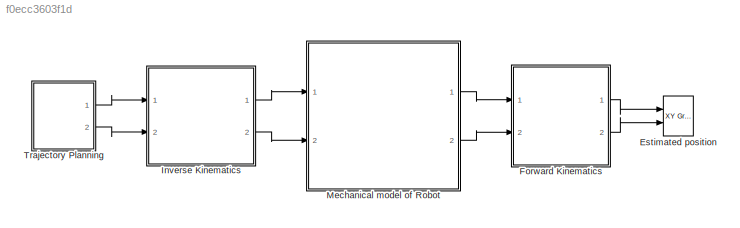
MODEL slx_f0ecc3603f1d
KIND model
CONFIG AbsTol = auto
CONFIG EnableMultiTasking = off
CONFIG FixedStep = auto
CONFIG MaxStep = auto
CONFIG MinStep = auto
CONFIG RelTol = 1e-3
CONFIG SampleTimeConstraint = Unconstrained
CONFIG Solver = VariableStepAuto
CONFIG SolverName = VariableStepAuto
CONFIG StartTime = 0.0
CONFIG StopTime = 5
BLOCK [Reference] Estimated position  REF=simulink/Sinks/XY Graph
  Ports = [2]
  SourceBlock = simulink/Sinks/XY Graph
  SourceProductBaseCode = SL
  SourceProductName = Simulink
  SourceType = XY scope.
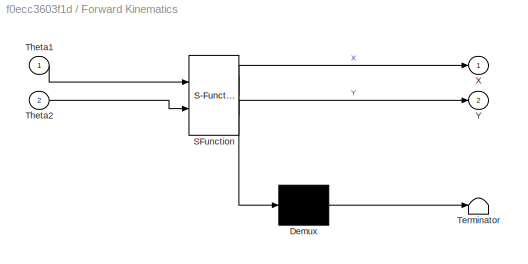
BLOCK [SubSystem] Forward Kinematics
  ErrorFcn = Stateflow.Translate.translate
  PermitHierarchicalResolution = ExplicitOnly
  Ports = [2, 2]
  RequestExecContextInheritance = off
  SFBlockType = MATLAB Function
  TreatAsAtomicUnit = on
BLOCK [Demux] Forward Kinematics/ Demux 
  Outputs = 1
  Ports = [1, 1]
BLOCK [S-Function] Forward Kinematics/ SFunction 
  EnableBusSupport = on
  FunctionName = sf_sfun
  PortCounts = [2 3]
  Ports = [2, 3]
  SFcnIsStateOwnerBlock = off
  SFunctionDeploymentMode = off
  Tag = Stateflow S-Function RR_Robot_kin 2
BLOCK [Terminator] Forward Kinematics/ Terminator 
BLOCK [Inport] Forward Kinematics/Theta1
  IconDisplay = Port number
BLOCK [Inport] Forward Kinematics/Theta2
  IconDisplay = Port number
  Port = 2
BLOCK [Outport] Forward Kinematics/X
  IconDisplay = Port number
BLOCK [Outport] Forward Kinematics/Y
  IconDisplay = Port number
  Port = 2
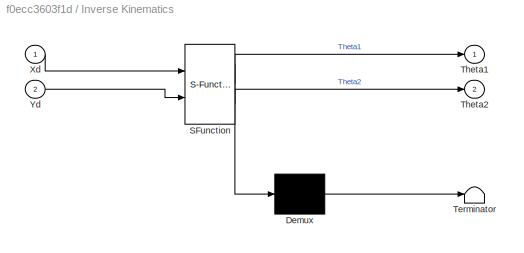
BLOCK [SubSystem] Inverse Kinematics
  ErrorFcn = Stateflow.Translate.translate
  PermitHierarchicalResolution = ExplicitOnly
  Ports = [2, 2]
  RequestExecContextInheritance = off
  SFBlockType = MATLAB Function
  TreatAsAtomicUnit = on
BLOCK [Demux] Inverse Kinematics/ Demux 
  Outputs = 1
  Ports = [1, 1]
BLOCK [S-Function] Inverse Kinematics/ SFunction 
  EnableBusSupport = on
  FunctionName = sf_sfun
  PortCounts = [2 3]
  Ports = [2, 3]
  SFcnIsStateOwnerBlock = off
  SFunctionDeploymentMode = off
  Tag = Stateflow S-Function RR_Robot_kin 1
BLOCK [Terminator] Inverse Kinematics/ Terminator 
BLOCK [Outport] Inverse Kinematics/Theta1
  IconDisplay = Port number
BLOCK [Outport] Inverse Kinematics/Theta2
  IconDisplay = Port number
  Port = 2
BLOCK [Inport] Inverse Kinematics/Xd
  IconDisplay = Port number
BLOCK [Inport] Inverse Kinematics/Yd
  IconDisplay = Port number
  Port = 2
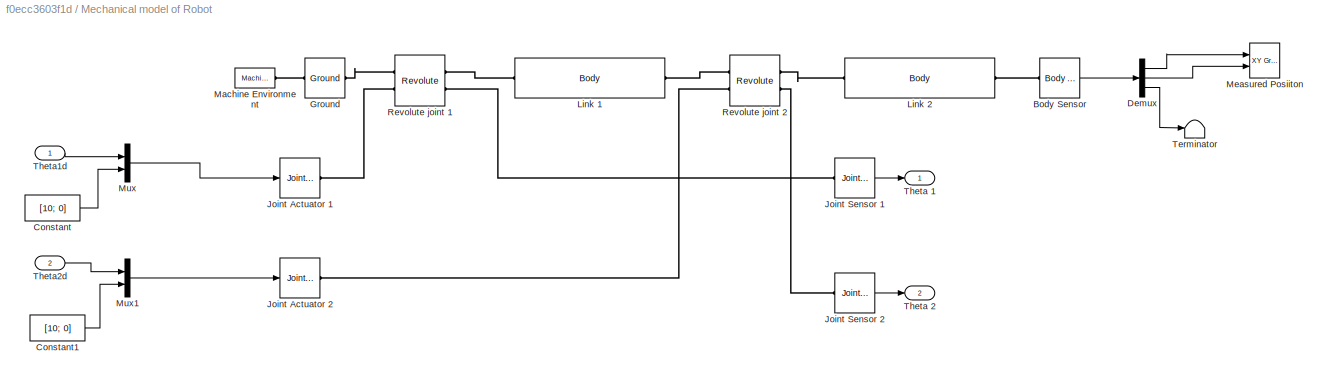
BLOCK [SubSystem] Mechanical model of Robot
  Ports = [2, 2]
  RequestExecContextInheritance = off
BLOCK [Reference] Mechanical model of Robot/Body Sensor  REF=mblibv1/Sensors & 
Actuators/Body Sensor
  Ports = [0, 1, 0, 0, 0, 1]
  SourceBlock = mblibv1/Sensors & \nActuators/Body Sensor
  SourceProductBaseCode = MS
  SourceProductName = Simscape Multibody
  SourceType = Body Sensor
BLOCK [Constant] Mechanical model of Robot/Constant
  Value = [10; 0]
BLOCK [Constant] Mechanical model of Robot/Constant1
  Value = [10; 0]
BLOCK [Demux] Mechanical model of Robot/Demux
  DisplayOption = bar
  Outputs = 3
  Ports = [1, 3]
BLOCK [Reference] Mechanical model of Robot/Ground  REF=mblibv1/Bodies/Ground
  Ports = [0, 0, 0, 0, 0, 1, 1]
  SourceBlock = mblibv1/Bodies/Ground
  SourceProductBaseCode = MS
  SourceProductName = Simscape Multibody
  SourceType = Ground
  UserDataPersistent = on
BLOCK [Reference] Mechanical model of Robot/Joint Actuator 1  REF=mblibv1/Sensors & 
Actuators/Joint Actuator
  Ports = [1, 0, 0, 0, 0, 0, 1]
  SourceBlock = mblibv1/Sensors & \nActuators/Joint Actuator
  SourceProductBaseCode = MS
  SourceProductName = Simscape Multibody
  SourceType = Joint Actuator
BLOCK [Reference] Mechanical model of Robot/Joint Actuator 2  REF=mblibv1/Sensors & 
Actuators/Joint Actuator
  Ports = [1, 0, 0, 0, 0, 0, 1]
  SourceBlock = mblibv1/Sensors & \nActuators/Joint Actuator
  SourceProductBaseCode = MS
  SourceProductName = Simscape Multibody
  SourceType = Joint Actuator
BLOCK [Reference] Mechanical model of Robot/Joint Sensor 1   REF=mblibv1/Sensors & 
Actuators/Joint Sensor
  Ports = [0, 1, 0, 0, 0, 1]
  SourceBlock = mblibv1/Sensors & \nActuators/Joint Sensor
  SourceProductBaseCode = MS
  SourceProductName = Simscape Multibody
  SourceType = Joint Sensor
BLOCK [Reference] Mechanical model of Robot/Joint Sensor 2  REF=mblibv1/Sensors & 
Actuators/Joint Sensor
  Ports = [0, 1, 0, 0, 0, 1]
  SourceBlock = mblibv1/Sensors & \nActuators/Joint Sensor
  SourceProductBaseCode = MS
  SourceProductName = Simscape Multibody
  SourceType = Joint Sensor
BLOCK [Reference] Mechanical model of Robot/Link 1  REF=mblibv1/Bodies/Body
  Ports = [0, 0, 0, 0, 0, 1, 1]
  SourceBlock = mblibv1/Bodies/Body
  SourceProductBaseCode = MS
  SourceProductName = Simscape Multibody
  SourceType = Body
BLOCK [Reference] Mechanical model of Robot/Link 2  REF=mblibv1/Bodies/Body
  Ports = [0, 0, 0, 0, 0, 1, 1]
  SourceBlock = mblibv1/Bodies/Body
  SourceProductBaseCode = MS
  SourceProductName = Simscape Multibody
  SourceType = Body
BLOCK [Reference] Mechanical model of Robot/Machine Environment  REF=mblibv1/Bodies/Machine
Environment
  Ports = [0, 0, 0, 0, 0, 0, 1]
  SourceBlock = mblibv1/Bodies/Machine\nEnvironment
  SourceProductBaseCode = MS
  SourceProductName = Simscape Multibody
  SourceType = Machine Environment
BLOCK [Reference] Mechanical model of Robot/Measured Posiiton  REF=simulink/Sinks/XY Graph
  Ports = [2]
  SourceBlock = simulink/Sinks/XY Graph
  SourceProductBaseCode = SL
  SourceProductName = Simulink
  SourceType = XY scope.
BLOCK [Mux] Mechanical model of Robot/Mux
  DisplayOption = bar
  Inputs = 2
  Ports = [2, 1]
BLOCK [Mux] Mechanical model of Robot/Mux1
  DisplayOption = bar
  Inputs = 2
  Ports = [2, 1]
BLOCK [Reference] Mechanical model of Robot/Revolute joint 1  REF=mblibv1/Joints/Revolute
  Ports = [0, 0, 0, 0, 0, 2, 2]
  SourceBlock = mblibv1/Joints/Revolute
  SourceProductBaseCode = MS
  SourceProductName = Simscape Multibody
  SourceType = Revolute
BLOCK [Reference] Mechanical model of Robot/Revolute joint 2  REF=mblibv1/Joints/Revolute
  Ports = [0, 0, 0, 0, 0, 2, 2]
  SourceBlock = mblibv1/Joints/Revolute
  SourceProductBaseCode = MS
  SourceProductName = Simscape Multibody
  SourceType = Revolute
BLOCK [Terminator] Mechanical model of Robot/Terminator
BLOCK [Outport] Mechanical model of Robot/Theta 1
  IconDisplay = Port number
BLOCK [Outport] Mechanical model of Robot/Theta 2
  IconDisplay = Port number
  Port = 2
BLOCK [Inport] Mechanical model of Robot/Theta1d
  IconDisplay = Port number
BLOCK [Inport] Mechanical model of Robot/Theta2d
  IconDisplay = Port number
  Port = 2
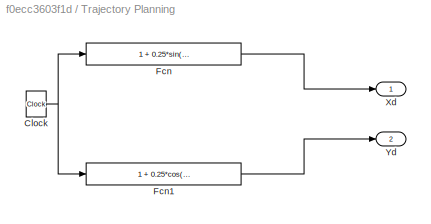
BLOCK [SubSystem] Trajectory Planning
  Ports = [0, 2]
  RequestExecContextInheritance = off
BLOCK [Clock] Trajectory Planning/Clock
BLOCK [Fcn] Trajectory Planning/Fcn
  Expr = 1 + 0.25*sin((2*pi/5)*u + pi/2)
BLOCK [Fcn] Trajectory Planning/Fcn1
  Expr = 1 + 0.25*cos((2*pi/5)*u + pi/2)
BLOCK [Outport] Trajectory Planning/Xd
  IconDisplay = Port number
BLOCK [Outport] Trajectory Planning/Yd
  IconDisplay = Port number
  Port = 2
LINE Forward Kinematics:1 -> Estimated position:1
LINE Forward Kinematics:2 -> Estimated position:2
LINE Inverse Kinematics:1 -> Mechanical model of Robot:1
LINE Inverse Kinematics:2 -> Mechanical model of Robot:2
LINE Mechanical model of Robot/Body Sensor:1 -> Mechanical model of Robot/Demux:1
LINE Mechanical model of Robot/Constant1:1 -> Mechanical model of Robot/Mux1:2
LINE Mechanical model of Robot/Constant:1 -> Mechanical model of Robot/Mux:2
LINE Mechanical model of Robot/Demux:1 -> Mechanical model of Robot/Measured Posiiton:1
LINE Mechanical model of Robot/Demux:2 -> Mechanical model of Robot/Measured Posiiton:2
LINE Mechanical model of Robot/Demux:3 -> Mechanical model of Robot/Terminator:1
LINE Mechanical model of Robot/Joint Sensor 1 :1 -> Mechanical model of Robot/Theta 1:1
LINE Mechanical model of Robot/Joint Sensor 2:1 -> Mechanical model of Robot/Theta 2:1
LINE Mechanical model of Robot/Mux1:1 -> Mechanical model of Robot/Joint Actuator 2:1
LINE Mechanical model of Robot/Mux:1 -> Mechanical model of Robot/Joint Actuator 1:1
LINE Mechanical model of Robot/Theta1d:1 -> Mechanical model of Robot/Mux:1
LINE Mechanical model of Robot/Theta2d:1 -> Mechanical model of Robot/Mux1:1
LINE Mechanical model of Robot:1 -> Forward Kinematics:1
LINE Mechanical model of Robot:2 -> Forward Kinematics:2
NET Trajectory Planning/Clock:1 -> Trajectory Planning/Fcn1:1, Trajectory Planning/Fcn:1
LINE Trajectory Planning/Fcn1:1 -> Trajectory Planning/Yd:1
LINE Trajectory Planning/Fcn:1 -> Trajectory Planning/Xd:1
LINE Trajectory Planning:1 -> Inverse Kinematics:1
LINE Trajectory Planning:2 -> Inverse Kinematics:2
PLINE Mechanical model of Robot/Body Sensor:LConn1 -- Mechanical model of Robot/Link 2:RConn1
PLINE Mechanical model of Robot/Ground:LConn1 -- Mechanical model of Robot/Machine Environment:RConn1
PLINE Mechanical model of Robot/Ground:RConn1 -- Mechanical model of Robot/Revolute joint 1:LConn1
PLINE Mechanical model of Robot/Joint Actuator 1:RConn1 -- Mechanical model of Robot/Revolute joint 1:LConn2
PLINE Mechanical model of Robot/Joint Actuator 2:RConn1 -- Mechanical model of Robot/Revolute joint 2:LConn2
PLINE Mechanical model of Robot/Joint Sensor 1 :LConn1 -- Mechanical model of Robot/Revolute joint 1:RConn2
PLINE Mechanical model of Robot/Joint Sensor 2:LConn1 -- Mechanical model of Robot/Revolute joint 2:RConn2
PLINE Mechanical model of Robot/Link 1:LConn1 -- Mechanical model of Robot/Revolute joint 1:RConn1
PLINE Mechanical model of Robot/Link 1:RConn1 -- Mechanical model of Robot/Revolute joint 2:LConn1
PLINE Mechanical model of Robot/Link 2:LConn1 -- Mechanical model of Robot/Revolute joint 2:RConn1
note: NET lines group one-source signal fan-out (src -> all destinations, sorted); 1:1 wires keep LINE
CHART Inverse Kinematics states=1 transitions=1
  STATE_LABEL 'eML_blk_kernel()'
  STATE_LABEL 'SCRIPT:\nfunction [Theta1,Theta2] = InverseKinematics(Xd,Yd)\n\nl1 = 1;\nl2 = 1;\n\nTheta2 = acos((Xd^2+Yd^2 - l1^2 - l2^2)/(2*l1*l2));\n\ns_Theta2 = sin(Theta2);\nc_Theta2 = cos(Theta2);\n\nTheta1 = atan2(Yd,Xd) - atan2(l2*s_Theta2, (l1+l2*c_Theta2));\n'
CHART Forward Kinematics states=1 transitions=1
  STATE_LABEL 'eML_blk_kernel()'
  STATE_LABEL 'SCRIPT:\nfunction [X,Y] = Forwardkinematics(Theta1, Theta2)\n\nl1 = 1;\nl2 = 1;\n\nT10 = [cos(Theta1), -sin(Theta1), 0, l1*cos(Theta1);\n    sin(Theta1), cos(Theta1), 0, l1*sin(Theta1);\n    0, 0, 1, 0;\n    0, 0, 0, 1];\n\nT21 = [cos(Theta2), -sin(Theta2), 0, l1*cos(Theta2);\n    sin(Theta2), cos(Theta2), 0, l1*sin(Theta2);\n    0, 0, 1, 0;\n    0, 0, 0, 1];\n\nT20 = T10*T21;\n\nX = T20(1,4);\nY = T20(2,4);\n'
